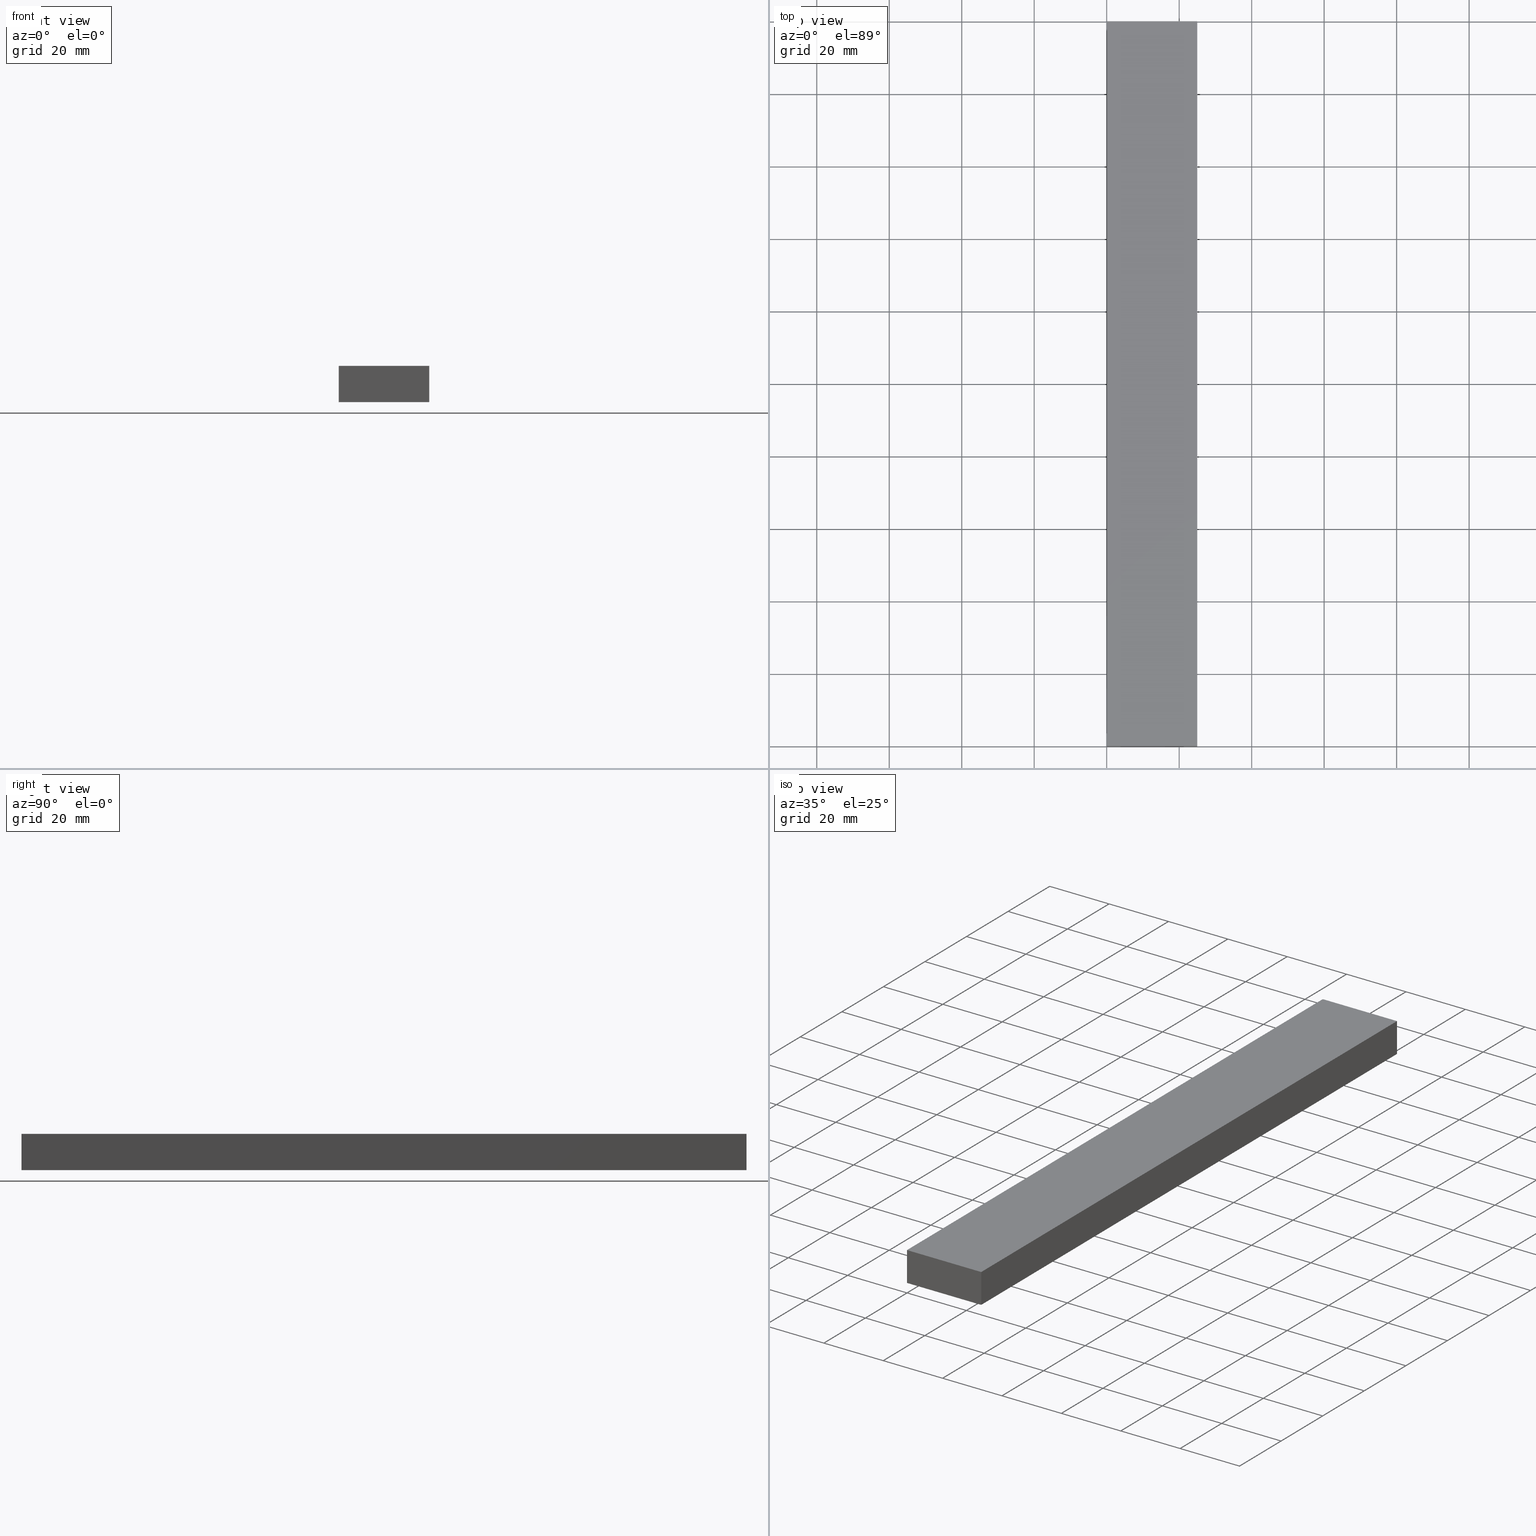
[diagram: canonical four-view strip — front | top / right | iso, engineering-drawing reading convention]
A machine part, canonical four-view strip (front | top / right | iso — engineering-drawing reading convention). The complete STEP part file that produces these views, byte-faithful:
ISO-10303-21;
HEADER;
FILE_DESCRIPTION (( 'STEP AP214' ),
    '1' );
FILE_NAME ('TM_340_10.STEP',
    '2016-05-09T05:34:09',
    ( '' ),
    ( '' ),
    'SwSTEP 2.0',
    'SolidWorks 2015',
    '' );
FILE_SCHEMA (( 'AUTOMOTIVE_DESIGN' ));
ENDSEC;

DATA;
#1 = EDGE_LOOP ( 'NONE', ( #137, #204, #209, #128 ) ) ;
#2 = PRODUCT_RELATED_PRODUCT_CATEGORY ( 'part', '', ( #94 ) ) ;
#3 = DIRECTION ( 'NONE',  ( 0.0000000000000000000, -1.000000000000000000, 0.0000000000000000000 ) ) ;
#4 = DIRECTION ( 'NONE',  ( 0.0000000000000000000, 0.0000000000000000000, -1.000000000000000000 ) ) ;
#5 = EDGE_LOOP ( 'NONE', ( #207, #191, #83, #41 ) ) ;
#6 = VERTEX_POINT ( 'NONE', #95 ) ;
#7 = PRODUCT_DEFINITION_SHAPE ( 'NONE', 'NONE',  #188 ) ;
#8 = EDGE_CURVE ( 'NONE', #180, #64, #222, .T. ) ;
#9 = FILL_AREA_STYLE ('',( #82 ) ) ;
#10 = CARTESIAN_POINT ( 'NONE',  ( 0.0000000000000000000, 1000.000000000000000, 0.0000000000000000000 ) ) ;
#11 = LINE ( 'NONE', #60, #208 ) ;
#12 = DIRECTION ( 'NONE',  ( -1.000000000000000000, 0.0000000000000000000, 0.0000000000000000000 ) ) ;
#13 = EDGE_CURVE ( 'NONE', #76, #127, #45, .T. ) ;
#14 =( LENGTH_UNIT ( ) NAMED_UNIT ( * ) SI_UNIT ( .MILLI., .METRE. ) );
#15 = APPLICATION_PROTOCOL_DEFINITION ( 'draft international standard', 'automotive_design', 1998, #131 ) ;
#16 = COLOUR_RGB ( '',0.7921568627450980000, 0.8196078431372548800, 0.9333333333333333500 ) ;
#17 = EDGE_LOOP ( 'NONE', ( #151, #190, #101, #146 ) ) ;
#18 = LINE ( 'NONE', #116, #203 ) ;
#19 = FACE_OUTER_BOUND ( 'NONE', #1, .T. ) ;
#20 = COLOUR_RGB ( '',0.7921568627450980000, 0.8196078431372548800, 0.9333333333333333500 ) ;
#21 = VERTEX_POINT ( 'NONE', #46 ) ;
#22 = MECHANICAL_DESIGN_GEOMETRIC_PRESENTATION_REPRESENTATION (  '', ( #113 ), #121 ) ;
#23 = DIRECTION ( 'NONE',  ( 0.0000000000000000000, 0.0000000000000000000, 1.000000000000000000 ) ) ;
#24 = VECTOR ( 'NONE', #206, 1000.000000000000000 ) ;
#25 = DIRECTION ( 'NONE',  ( 1.000000000000000000, 0.0000000000000000000, 0.0000000000000000000 ) ) ;
#26 = PLANE ( 'NONE',  #44 ) ;
#27 = EDGE_CURVE ( 'NONE', #64, #76, #11, .T. ) ;
#28 = PRESENTATION_LAYER_ASSIGNMENT (  '', '', ( #113 ) ) ;
#29 = CONTEXT_DEPENDENT_SHAPE_REPRESENTATION ( #149, #217 ) ;
#30 = SURFACE_STYLE_USAGE ( .BOTH. , #144 ) ;
#31 = PRODUCT_DEFINITION ( 'UNKNOWN', '', #228, #86 ) ;
#32 = CARTESIAN_POINT ( 'NONE',  ( 25.00000000000000000, 1000.000000000000000, 10.00000000000000000 ) ) ;
#33 = DIRECTION ( 'NONE',  ( 0.0000000000000000000, 0.0000000000000000000, 1.000000000000000000 ) ) ;
#34 = VECTOR ( 'NONE', #4, 1000.000000000000000 ) ;
#35 =( LENGTH_UNIT ( ) NAMED_UNIT ( * ) SI_UNIT ( .MILLI., .METRE. ) );
#36 =( NAMED_UNIT ( * ) SI_UNIT ( $, .STERADIAN. ) SOLID_ANGLE_UNIT ( ) );
#37 = DIRECTION ( 'NONE',  ( 1.000000000000000000, 0.0000000000000000000, 0.0000000000000000000 ) ) ;
#38 = ITEM_DEFINED_TRANSFORMATION ( 'NONE', 'NONE', #136,  #152 ) ;
#39 = ADVANCED_BREP_SHAPE_REPRESENTATION ( '', ( #120, #152 ), #100 ) ;
#40 = ADVANCED_FACE ( 'NONE', ( #104 ), #80, .F. ) ;
#41 = ORIENTED_EDGE ( 'NONE', *, *, #78, .T. ) ;
#42 = VERTEX_POINT ( 'NONE', #156 ) ;
#43 = EDGE_CURVE ( 'NONE', #64, #21, #18, .T. ) ;
#44 = AXIS2_PLACEMENT_3D ( 'NONE', #66, #211, #102 ) ;
#45 = LINE ( 'NONE', #221, #229 ) ;
#46 = CARTESIAN_POINT ( 'NONE',  ( 0.0000000000000000000, 0.0000000000000000000, 10.00000000000000000 ) ) ;
#47 = DIRECTION ( 'NONE',  ( 1.000000000000000000, 0.0000000000000000000, 0.0000000000000000000 ) ) ;
#48 = DIRECTION ( 'NONE',  ( 0.0000000000000000000, -1.000000000000000000, 0.0000000000000000000 ) ) ;
#49 = ORIENTED_EDGE ( 'NONE', *, *, #224, .T. ) ;
#50 =( NAMED_UNIT ( * ) PLANE_ANGLE_UNIT ( ) SI_UNIT ( $, .RADIAN. ) );
#51 = CARTESIAN_POINT ( 'NONE',  ( 0.0000000000000000000, 0.0000000000000000000, 0.0000000000000000000 ) ) ;
#52 = DIRECTION ( 'NONE',  ( -1.000000000000000000, 0.0000000000000000000, 0.0000000000000000000 ) ) ;
#53 =( NAMED_UNIT ( * ) SI_UNIT ( $, .STERADIAN. ) SOLID_ANGLE_UNIT ( ) );
#54 = EDGE_CURVE ( 'NONE', #21, #6, #65, .T. ) ;
#55 = CARTESIAN_POINT ( 'NONE',  ( 0.0000000000000000000, 0.0000000000000000000, 0.0000000000000000000 ) ) ;
#56 = AXIS2_PLACEMENT_3D ( 'NONE', #205, #141, #47 ) ;
#57 = PRESENTATION_LAYER_ASSIGNMENT (  '', '', ( #170 ) ) ;
#58 = UNCERTAINTY_MEASURE_WITH_UNIT (LENGTH_MEASURE( 1.000000000000000100E-005 ), #110, 'distance_accuracy_value', 'NONE');
#59 = ORIENTED_EDGE ( 'NONE', *, *, #155, .F. ) ;
#60 = CARTESIAN_POINT ( 'NONE',  ( 0.0000000000000000000, 200.0000000000000000, 10.00000000000000000 ) ) ;
#61 = FACE_OUTER_BOUND ( 'NONE', #71, .T. ) ;
#62 = CARTESIAN_POINT ( 'NONE',  ( 0.0000000000000000000, 0.0000000000000000000, 10.00000000000000000 ) ) ;
#63 = CARTESIAN_POINT ( 'NONE',  ( 0.0000000000000000000, 200.0000000000000000, 10.00000000000000000 ) ) ;
#64 = VERTEX_POINT ( 'NONE', #63 ) ;
#65 = LINE ( 'NONE', #62, #24 ) ;
#66 = CARTESIAN_POINT ( 'NONE',  ( 0.0000000000000000000, 1000.000000000000000, 10.00000000000000000 ) ) ;
#67 = SURFACE_STYLE_FILL_AREA ( #106 ) ;
#68 = AXIS2_PLACEMENT_3D ( 'NONE', #227, #103, #230 ) ;
#69 = ORIENTED_EDGE ( 'NONE', *, *, #90, .F. ) ;
#70 = DIRECTION ( 'NONE',  ( 1.000000000000000000, 0.0000000000000000000, 0.0000000000000000000 ) ) ;
#71 = EDGE_LOOP ( 'NONE', ( #99, #181, #174, #49 ) ) ;
#72 = CARTESIAN_POINT ( 'NONE',  ( 0.0000000000000000000, 0.0000000000000000000, 0.0000000000000000000 ) ) ;
#73 = DIRECTION ( 'NONE',  ( 1.000000000000000000, 0.0000000000000000000, 0.0000000000000000000 ) ) ;
#74 = APPLICATION_PROTOCOL_DEFINITION ( 'draft international standard', 'automotive_design', 1998, #183 ) ;
#75 = AXIS2_PLACEMENT_3D ( 'NONE', #231, #33, #163 ) ;
#76 = VERTEX_POINT ( 'NONE', #189 ) ;
#77 = ADVANCED_FACE ( 'NONE', ( #123 ), #97, .T. ) ;
#78 = EDGE_CURVE ( 'NONE', #127, #42, #171, .T. ) ;
#79 = AXIS2_PLACEMENT_3D ( 'NONE', #55, #182, #73 ) ;
#80 = PLANE ( 'NONE',  #56 ) ;
#81 = LINE ( 'NONE', #145, #93 ) ;
#82 = FILL_AREA_STYLE_COLOUR ( '', #16 ) ;
#83 = ORIENTED_EDGE ( 'NONE', *, *, #218, .F. ) ;
#84 = EDGE_LOOP ( 'NONE', ( #117, #193, #198, #167 ) ) ;
#85 = CARTESIAN_POINT ( 'NONE',  ( 25.00000000000000000, 200.0000000000000000, 0.0000000000000000000 ) ) ;
#86 = PRODUCT_DEFINITION_CONTEXT ( 'detailed design', #131, 'design' ) ;
#87 = SHAPE_REPRESENTATION_RELATIONSHIP ( 'NONE' , 'NONE' ,  #194, #39 ) ;
#88 = CARTESIAN_POINT ( 'NONE',  ( 0.0000000000000000000, 1000.000000000000000, 0.0000000000000000000 ) ) ;
#89 = DIRECTION ( 'NONE',  ( 1.000000000000000000, 0.0000000000000000000, 0.0000000000000000000 ) ) ;
#90 = EDGE_CURVE ( 'NONE', #6, #42, #107, .T. ) ;
#91 = DIRECTION ( 'NONE',  ( 0.0000000000000000000, 0.0000000000000000000, 1.000000000000000000 ) ) ;
#92 = APPLICATION_CONTEXT ( 'automotive_design' ) ;
#93 = VECTOR ( 'NONE', #213, 1000.000000000000000 ) ;
#94 = PRODUCT ( 'rubber foam', 'rubber foam', '', ( #235 ) ) ;
#95 = CARTESIAN_POINT ( 'NONE',  ( 25.00000000000000000, 0.0000000000000000000, 10.00000000000000000 ) ) ;
#96 = PRODUCT_DEFINITION_SHAPE ( 'NONE', 'NONE',  #31 ) ;
#97 = PLANE ( 'NONE',  #139 ) ;
#98 = CARTESIAN_POINT ( 'NONE',  ( 0.0000000000000000000, 200.0000000000000000, 0.0000000000000000000 ) ) ;
#99 = ORIENTED_EDGE ( 'NONE', *, *, #175, .T. ) ;
#100 =( GEOMETRIC_REPRESENTATION_CONTEXT ( 3 ) GLOBAL_UNCERTAINTY_ASSIGNED_CONTEXT ( ( #159 ) ) GLOBAL_UNIT_ASSIGNED_CONTEXT ( ( #35, #164, #53 ) ) REPRESENTATION_CONTEXT ( 'NONE', 'WORKASPACE' ) );
#101 = ORIENTED_EDGE ( 'NONE', *, *, #218, .T. ) ;
#102 = DIRECTION ( 'NONE',  ( -1.000000000000000000, 0.0000000000000000000, 0.0000000000000000000 ) ) ;
#103 = DIRECTION ( 'NONE',  ( -1.000000000000000000, 0.0000000000000000000, 0.0000000000000000000 ) ) ;
#104 = FACE_OUTER_BOUND ( 'NONE', #114, .T. ) ;
#105 = DIRECTION ( 'NONE',  ( 0.0000000000000000000, -1.000000000000000000, 0.0000000000000000000 ) ) ;
#106 = FILL_AREA_STYLE ('',( #214 ) ) ;
#107 = LINE ( 'NONE', #142, #34 ) ;
#108 = FACE_OUTER_BOUND ( 'NONE', #84, .T. ) ;
#109 = SHAPE_DEFINITION_REPRESENTATION ( #96, #194 ) ;
#110 =( LENGTH_UNIT ( ) NAMED_UNIT ( * ) SI_UNIT ( .MILLI., .METRE. ) );
#111 = ADVANCED_FACE ( 'NONE', ( #19 ), #26, .F. ) ;
#112 = APPLICATION_PROTOCOL_DEFINITION ( 'draft international standard', 'automotive_design', 1998, #166 ) ;
#113 = STYLED_ITEM ( 'NONE', ( #184 ), #120 ) ;
#114 = EDGE_LOOP ( 'NONE', ( #157, #134, #59, #69 ) ) ;
#115 = CARTESIAN_POINT ( 'NONE',  ( 0.0000000000000000000, 200.0000000000000000, 0.0000000000000000000 ) ) ;
#116 = CARTESIAN_POINT ( 'NONE',  ( 0.0000000000000000000, 1000.000000000000000, 10.00000000000000000 ) ) ;
#117 = ORIENTED_EDGE ( 'NONE', *, *, #90, .T. ) ;
#118 = DIRECTION ( 'NONE',  ( 1.000000000000000000, 0.0000000000000000000, 0.0000000000000000000 ) ) ;
#119 = FACE_OUTER_BOUND ( 'NONE', #5, .T. ) ;
#120 = MANIFOLD_SOLID_BREP ( '���߰�1', #237 ) ;
#121 =( GEOMETRIC_REPRESENTATION_CONTEXT ( 3 ) GLOBAL_UNCERTAINTY_ASSIGNED_CONTEXT ( ( #201 ) ) GLOBAL_UNIT_ASSIGNED_CONTEXT ( ( #160, #50, #178 ) ) REPRESENTATION_CONTEXT ( 'NONE', 'WORKASPACE' ) );
#122 = CARTESIAN_POINT ( 'NONE',  ( 0.0000000000000000000, 200.0000000000000000, 0.0000000000000000000 ) ) ;
#123 = FACE_OUTER_BOUND ( 'NONE', #17, .T. ) ;
#124 = PLANE ( 'NONE',  #75 ) ;
#125 = CARTESIAN_POINT ( 'NONE',  ( 0.0000000000000000000, 0.0000000000000000000, 0.0000000000000000000 ) ) ;
#126 = SURFACE_STYLE_USAGE ( .BOTH. , #233 ) ;
#127 = VERTEX_POINT ( 'NONE', #85 ) ;
#128 = ORIENTED_EDGE ( 'NONE', *, *, #43, .T. ) ;
#129 =( NAMED_UNIT ( * ) SI_UNIT ( $, .STERADIAN. ) SOLID_ANGLE_UNIT ( ) );
#130 = AXIS2_PLACEMENT_3D ( 'NONE', #10, #70, #196 ) ;
#131 = APPLICATION_CONTEXT ( 'automotive_design' ) ;
#132 =( GEOMETRIC_REPRESENTATION_CONTEXT ( 3 ) GLOBAL_UNCERTAINTY_ASSIGNED_CONTEXT ( ( #219 ) ) GLOBAL_UNIT_ASSIGNED_CONTEXT ( ( #14, #147, #36 ) ) REPRESENTATION_CONTEXT ( 'NONE', 'WORKASPACE' ) );
#133 = VECTOR ( 'NONE', #23, 1000.000000000000000 ) ;
#134 = ORIENTED_EDGE ( 'NONE', *, *, #175, .F. ) ;
#135 = VECTOR ( 'NONE', #12, 1000.000000000000000 ) ;
#136 = AXIS2_PLACEMENT_3D ( 'NONE', #200, #91, #215 ) ;
#137 = ORIENTED_EDGE ( 'NONE', *, *, #54, .T. ) ;
#138 = ADVANCED_FACE ( 'NONE', ( #108 ), #195, .F. ) ;
#139 = AXIS2_PLACEMENT_3D ( 'NONE', #98, #223, #118 ) ;
#140 = DIRECTION ( 'NONE',  ( 0.0000000000000000000, 0.0000000000000000000, -1.000000000000000000 ) ) ;
#141 = DIRECTION ( 'NONE',  ( -0.0000000000000000000, 1.000000000000000000, 0.0000000000000000000 ) ) ;
#142 = CARTESIAN_POINT ( 'NONE',  ( 25.00000000000000000, 0.0000000000000000000, 10.00000000000000000 ) ) ;
#143 = EDGE_CURVE ( 'NONE', #76, #6, #177, .T. ) ;
#144 = SURFACE_SIDE_STYLE ('',( #238 ) ) ;
#145 = CARTESIAN_POINT ( 'NONE',  ( 0.0000000000000000000, 0.0000000000000000000, 0.0000000000000000000 ) ) ;
#146 = ORIENTED_EDGE ( 'NONE', *, *, #8, .T. ) ;
#147 =( NAMED_UNIT ( * ) PLANE_ANGLE_UNIT ( ) SI_UNIT ( $, .RADIAN. ) );
#148 = DIRECTION ( 'NONE',  ( 0.0000000000000000000, 0.0000000000000000000, 1.000000000000000000 ) ) ;
#149 =( REPRESENTATION_RELATIONSHIP ('NONE','NONE', #197, #194 ) REPRESENTATION_RELATIONSHIP_WITH_TRANSFORMATION ( #38 )SHAPE_REPRESENTATION_RELATIONSHIP( ) );
#150 = VECTOR ( 'NONE', #48, 1000.000000000000000 ) ;
#151 = ORIENTED_EDGE ( 'NONE', *, *, #27, .T. ) ;
#152 = AXIS2_PLACEMENT_3D ( 'NONE', #72, #199, #89 ) ;
#153 = VERTEX_POINT ( 'NONE', #51 ) ;
#154 = ADVANCED_FACE ( 'NONE', ( #61 ), #212, .F. ) ;
#155 = EDGE_CURVE ( 'NONE', #42, #153, #186, .T. ) ;
#156 = CARTESIAN_POINT ( 'NONE',  ( 25.00000000000000000, 0.0000000000000000000, 0.0000000000000000000 ) ) ;
#157 = ORIENTED_EDGE ( 'NONE', *, *, #54, .F. ) ;
#158 = CARTESIAN_POINT ( 'NONE',  ( 25.00000000000000000, 1000.000000000000000, 0.0000000000000000000 ) ) ;
#159 = UNCERTAINTY_MEASURE_WITH_UNIT (LENGTH_MEASURE( 1.000000000000000100E-005 ), #35, 'distance_accuracy_value', 'NONE');
#160 =( LENGTH_UNIT ( ) NAMED_UNIT ( * ) SI_UNIT ( .MILLI., .METRE. ) );
#161 = PRESENTATION_STYLE_ASSIGNMENT (( #126 ) ) ;
#162 = DIRECTION ( 'NONE',  ( 0.0000000000000000000, -1.000000000000000000, 0.0000000000000000000 ) ) ;
#163 = DIRECTION ( 'NONE',  ( 1.000000000000000000, 0.0000000000000000000, 0.0000000000000000000 ) ) ;
#164 =( NAMED_UNIT ( * ) PLANE_ANGLE_UNIT ( ) SI_UNIT ( $, .RADIAN. ) );
#165 = LINE ( 'NONE', #88, #176 ) ;
#166 = APPLICATION_CONTEXT ( 'automotive_design' ) ;
#167 = ORIENTED_EDGE ( 'NONE', *, *, #143, .T. ) ;
#168 = PRODUCT_RELATED_PRODUCT_CATEGORY ( 'part', '', ( #225 ) ) ;
#169 =( GEOMETRIC_REPRESENTATION_CONTEXT ( 3 ) GLOBAL_UNCERTAINTY_ASSIGNED_CONTEXT ( ( #58 ) ) GLOBAL_UNIT_ASSIGNED_CONTEXT ( ( #110, #234, #129 ) ) REPRESENTATION_CONTEXT ( 'NONE', 'WORKASPACE' ) );
#170 = STYLED_ITEM ( 'NONE', ( #161 ), #39 ) ;
#171 = LINE ( 'NONE', #158, #150 ) ;
#172 = LINE ( 'NONE', #179, #173 ) ;
#173 = VECTOR ( 'NONE', #52, 1000.000000000000000 ) ;
#174 = ORIENTED_EDGE ( 'NONE', *, *, #8, .F. ) ;
#175 = EDGE_CURVE ( 'NONE', #153, #21, #81, .T. ) ;
#176 = VECTOR ( 'NONE', #105, 1000.000000000000000 ) ;
#177 = LINE ( 'NONE', #32, #220 ) ;
#178 =( NAMED_UNIT ( * ) SI_UNIT ( $, .STERADIAN. ) SOLID_ANGLE_UNIT ( ) );
#179 = CARTESIAN_POINT ( 'NONE',  ( 25.00000000000000000, 200.0000000000000000, 0.0000000000000000000 ) ) ;
#180 = VERTEX_POINT ( 'NONE', #122 ) ;
#181 = ORIENTED_EDGE ( 'NONE', *, *, #43, .F. ) ;
#182 = DIRECTION ( 'NONE',  ( 0.0000000000000000000, 0.0000000000000000000, 1.000000000000000000 ) ) ;
#183 = APPLICATION_CONTEXT ( 'automotive_design' ) ;
#184 = PRESENTATION_STYLE_ASSIGNMENT (( #30 ) ) ;
#185 = ADVANCED_FACE ( 'NONE', ( #119 ), #124, .F. ) ;
#186 = LINE ( 'NONE', #232, #135 ) ;
#187 = SHAPE_DEFINITION_REPRESENTATION ( #7, #197 ) ;
#188 = PRODUCT_DEFINITION ( 'UNKNOWN', '', #236, #210 ) ;
#189 = CARTESIAN_POINT ( 'NONE',  ( 25.00000000000000000, 200.0000000000000000, 10.00000000000000000 ) ) ;
#190 = ORIENTED_EDGE ( 'NONE', *, *, #13, .T. ) ;
#191 = ORIENTED_EDGE ( 'NONE', *, *, #224, .F. ) ;
#192 = AXIS2_PLACEMENT_3D ( 'NONE', #125, #148, #37 ) ;
#193 = ORIENTED_EDGE ( 'NONE', *, *, #78, .F. ) ;
#194 = SHAPE_REPRESENTATION ( 'rubber foam', ( #152 ), #100 ) ;
#195 = PLANE ( 'NONE',  #68 ) ;
#196 = DIRECTION ( 'NONE',  ( 0.0000000000000000000, 0.0000000000000000000, -1.000000000000000000 ) ) ;
#197 = SHAPE_REPRESENTATION ( 'TM_340_10', ( #192, #136 ), #169 ) ;
#198 = ORIENTED_EDGE ( 'NONE', *, *, #13, .F. ) ;
#199 = DIRECTION ( 'NONE',  ( 0.0000000000000000000, 0.0000000000000000000, 1.000000000000000000 ) ) ;
#200 = CARTESIAN_POINT ( 'NONE',  ( 0.0000000000000000000, 0.0000000000000000000, 0.0000000000000000000 ) ) ;
#201 = UNCERTAINTY_MEASURE_WITH_UNIT (LENGTH_MEASURE( 1.000000000000000100E-005 ), #160, 'distance_accuracy_value', 'NONE');
#202 = PRODUCT_CONTEXT ( 'NONE', #183, 'mechanical' ) ;
#203 = VECTOR ( 'NONE', #3, 1000.000000000000000 ) ;
#204 = ORIENTED_EDGE ( 'NONE', *, *, #143, .F. ) ;
#205 = CARTESIAN_POINT ( 'NONE',  ( 0.0000000000000000000, 0.0000000000000000000, 0.0000000000000000000 ) ) ;
#206 = DIRECTION ( 'NONE',  ( 1.000000000000000000, 0.0000000000000000000, 0.0000000000000000000 ) ) ;
#207 = ORIENTED_EDGE ( 'NONE', *, *, #155, .T. ) ;
#208 = VECTOR ( 'NONE', #25, 1000.000000000000000 ) ;
#209 = ORIENTED_EDGE ( 'NONE', *, *, #27, .F. ) ;
#210 = PRODUCT_DEFINITION_CONTEXT ( 'detailed design', #92, 'design' ) ;
#211 = DIRECTION ( 'NONE',  ( 0.0000000000000000000, 0.0000000000000000000, -1.000000000000000000 ) ) ;
#212 = PLANE ( 'NONE',  #130 ) ;
#213 = DIRECTION ( 'NONE',  ( 0.0000000000000000000, 0.0000000000000000000, 1.000000000000000000 ) ) ;
#214 = FILL_AREA_STYLE_COLOUR ( '', #20 ) ;
#215 = DIRECTION ( 'NONE',  ( 1.000000000000000000, 0.0000000000000000000, 0.0000000000000000000 ) ) ;
#216 = APPLICATION_PROTOCOL_DEFINITION ( 'draft international standard', 'automotive_design', 1998, #92 ) ;
#217 = PRODUCT_DEFINITION_SHAPE ( 'NONE', 'NONE',  #239 ) ;
#218 = EDGE_CURVE ( 'NONE', #127, #180, #172, .T. ) ;
#219 = UNCERTAINTY_MEASURE_WITH_UNIT (LENGTH_MEASURE( 1.000000000000000100E-005 ), #14, 'distance_accuracy_value', 'NONE');
#220 = VECTOR ( 'NONE', #162, 1000.000000000000000 ) ;
#221 = CARTESIAN_POINT ( 'NONE',  ( 25.00000000000000000, 200.0000000000000000, 10.00000000000000000 ) ) ;
#222 = LINE ( 'NONE', #115, #133 ) ;
#223 = DIRECTION ( 'NONE',  ( -0.0000000000000000000, 1.000000000000000000, 0.0000000000000000000 ) ) ;
#224 = EDGE_CURVE ( 'NONE', #180, #153, #165, .T. ) ;
#225 = PRODUCT ( 'TM_340_10', 'TM_340_10', '', ( #202 ) ) ;
#226 = MECHANICAL_DESIGN_GEOMETRIC_PRESENTATION_REPRESENTATION (  '', ( #170 ), #132 ) ;
#227 = CARTESIAN_POINT ( 'NONE',  ( 25.00000000000000000, 1000.000000000000000, 10.00000000000000000 ) ) ;
#228 = PRODUCT_DEFINITION_FORMATION_WITH_SPECIFIED_SOURCE ( 'ANY', '', #94, .NOT_KNOWN. ) ;
#229 = VECTOR ( 'NONE', #140, 1000.000000000000000 ) ;
#230 = DIRECTION ( 'NONE',  ( 0.0000000000000000000, 0.0000000000000000000, 1.000000000000000000 ) ) ;
#231 = CARTESIAN_POINT ( 'NONE',  ( 25.00000000000000000, 1000.000000000000000, 0.0000000000000000000 ) ) ;
#232 = CARTESIAN_POINT ( 'NONE',  ( 25.00000000000000000, 0.0000000000000000000, 0.0000000000000000000 ) ) ;
#233 = SURFACE_SIDE_STYLE ('',( #67 ) ) ;
#234 =( NAMED_UNIT ( * ) PLANE_ANGLE_UNIT ( ) SI_UNIT ( $, .RADIAN. ) );
#235 = PRODUCT_CONTEXT ( 'NONE', #166, 'mechanical' ) ;
#236 = PRODUCT_DEFINITION_FORMATION_WITH_SPECIFIED_SOURCE ( 'ANY', '', #225, .NOT_KNOWN. ) ;
#237 = CLOSED_SHELL ( 'NONE', ( #111, #138, #185, #154, #77, #40 ) ) ;
#238 = SURFACE_STYLE_FILL_AREA ( #9 ) ;
#239 = NEXT_ASSEMBLY_USAGE_OCCURRENCE ( 'NAUO1', ' ', ' ', #188, #31, $ ) ;
ENDSEC;
END-ISO-10303-21;
